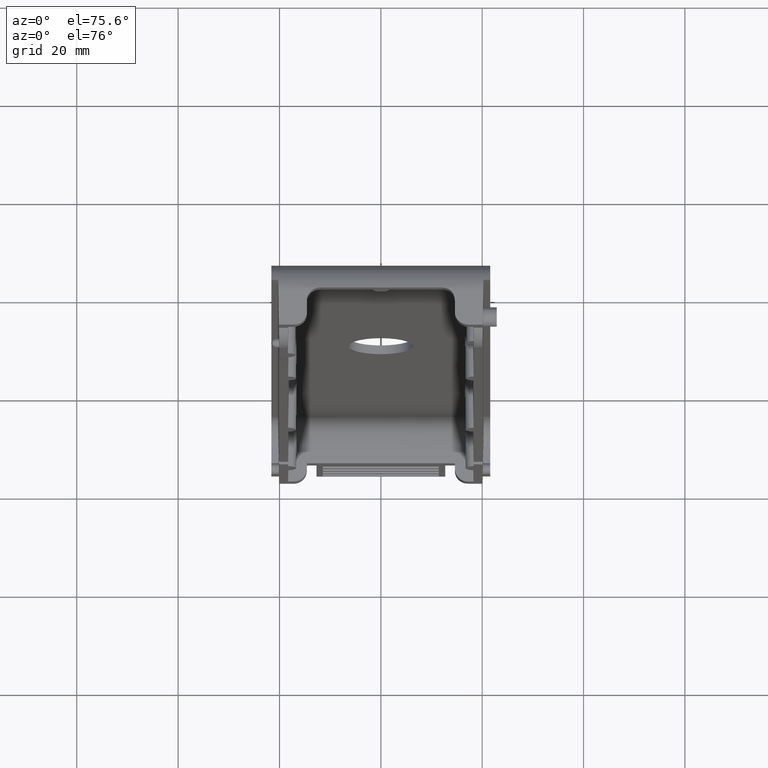
[diagram: clean part render]
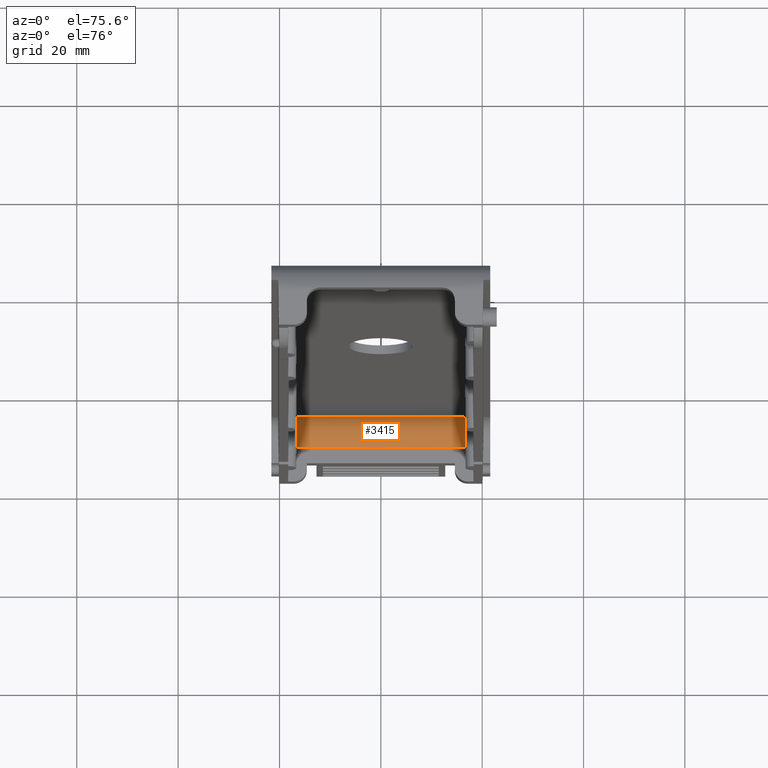
[diagram: same view with one face highlighted and labeled with its STEP entity id]
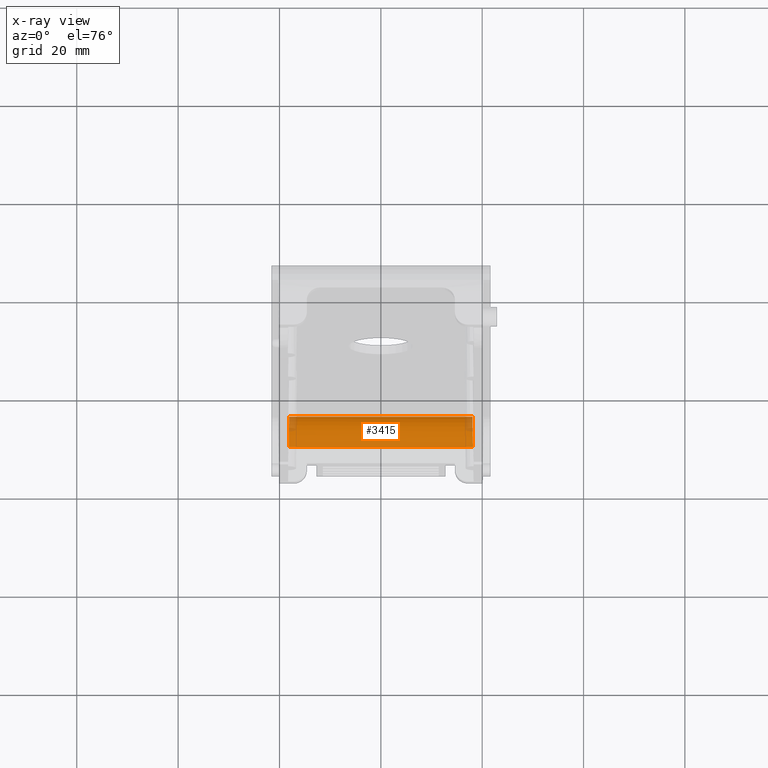
[diagram: x-ray of the same camera — body ghosted, the highlighted face saturated]
A machine part, auxiliary view. The second image highlights one B-rep face of the part: STEP entity #3415.
The next image is the same camera in x-ray: the body ghosted, the highlighted face saturated — about 4% of this face is hidden behind the body in this view.
In plain terms, the highlighted cylindrical surface (edge-blend (fillet) strip) has radius 5.08 mm, axis along (1, 0, 0).
Its self-contained STEP definition (entity closure, byte-faithful):
#162 = CARTESIAN_POINT ( 'NONE',  ( -0.7159034504981712800, 0.2719798993405001500, -2.406642196205909500 ) ) ;
#175 = CARTESIAN_POINT ( 'NONE',  ( -0.7125342721087086800, 0.4650000000000001400, -2.320704110551159000 ) ) ;
#233 = CARTESIAN_POINT ( 'NONE',  ( 0.7139158305506323500, 0.3858505698715437600, -2.402665744768424500 ) ) ;
#380 = DIRECTION ( 'NONE',  ( 1.000000000000000000, 0.0000000000000000000, 0.0000000000000000000 ) ) ;
#399 = ORIENTED_EDGE ( 'NONE', *, *, #963, .T. ) ;
#492 = CARTESIAN_POINT ( 'NONE',  ( -0.7139158305506322400, 0.3858505698715436500, -2.402665744768424500 ) ) ;
#596 = LINE ( 'NONE', #4113, #4008 ) ;
#656 = VERTEX_POINT ( 'NONE', #3569 ) ;
#770 = AXIS2_PLACEMENT_3D ( 'NONE', #3675, #380, #2686 ) ;
#798 = CARTESIAN_POINT ( 'NONE',  ( 0.8000000000000000400, 0.2719798993405001500, -2.406642196205909500 ) ) ;
#844 = VECTOR ( 'NONE', #1127, 39.37007874015748100 ) ;
#963 = EDGE_CURVE ( 'NONE', #2807, #3726, #596, .T. ) ;
#1078 = EDGE_CURVE ( 'NONE', #2807, #656, #1835, .T. ) ;
#1127 = DIRECTION ( 'NONE',  ( 1.000000000000000000, -0.0000000000000000000, 0.0000000000000000000 ) ) ;
#1835 =( BOUNDED_CURVE ( )  B_SPLINE_CURVE ( 3, ( #3515, #1880, #233, #2544 ),
 .UNSPECIFIED., .F., .F. ) 
 B_SPLINE_CURVE_WITH_KNOTS ( ( 4, 4 ),
 ( 3.141592653589793100, 4.677482395344803500 ),
 .UNSPECIFIED. ) 
 CURVE ( )  GEOMETRIC_REPRESENTATION_ITEM ( )  RATIONAL_B_SPLINE_CURVE ( ( 1.000000000000000000, 0.8128932002257673900, 0.8128932002257673900, 1.000000000000000000 ) ) 
 REPRESENTATION_ITEM ( '' )  );
#1880 = CARTESIAN_POINT ( 'NONE',  ( 0.7125342721087087900, 0.4650000000000001400, -2.320704110551159000 ) ) ;
#2490 = CARTESIAN_POINT ( 'NONE',  ( -0.7125342721087089000, 0.4650000000000000800, -2.206764030802090800 ) ) ;
#2507 = CYLINDRICAL_SURFACE ( 'NONE', #770, 0.2000000000000000400 ) ;
#2544 = CARTESIAN_POINT ( 'NONE',  ( 0.7159034504981715000, 0.2719798993405001500, -2.406642196205909500 ) ) ;
#2553 = EDGE_CURVE ( 'NONE', #2582, #656, #3466, .T. ) ;
#2582 = VERTEX_POINT ( 'NONE', #3092 ) ;
#2625 = EDGE_CURVE ( 'NONE', #2582, #3726, #2990, .T. ) ;
#2684 = ORIENTED_EDGE ( 'NONE', *, *, #2553, .T. ) ;
#2686 = DIRECTION ( 'NONE',  ( 0.0000000000000000000, 0.0000000000000000000, -1.000000000000000000 ) ) ;
#2807 = VERTEX_POINT ( 'NONE', #2954 ) ;
#2935 = EDGE_LOOP ( 'NONE', ( #3670, #399, #3657, #2684 ) ) ;
#2954 = CARTESIAN_POINT ( 'NONE',  ( 0.7125342721087087900, 0.4650000000000000800, -2.206764030802090800 ) ) ;
#2990 =( BOUNDED_CURVE ( )  B_SPLINE_CURVE ( 3, ( #162, #492, #175, #2490 ),
 .UNSPECIFIED., .F., .F. ) 
 B_SPLINE_CURVE_WITH_KNOTS ( ( 4, 4 ),
 ( 4.747295565424575900, 6.283185307179586200 ),
 .UNSPECIFIED. ) 
 CURVE ( )  GEOMETRIC_REPRESENTATION_ITEM ( )  RATIONAL_B_SPLINE_CURVE ( ( 1.000000000000000000, 0.8128932002257673900, 0.8128932002257673900, 1.000000000000000000 ) ) 
 REPRESENTATION_ITEM ( '' )  );
#3092 = CARTESIAN_POINT ( 'NONE',  ( -0.7159034504981712800, 0.2719798993405001500, -2.406642196205909500 ) ) ;
#3120 = DIRECTION ( 'NONE',  ( -1.000000000000000000, -0.0000000000000000000, -0.0000000000000000000 ) ) ;
#3415 = ADVANCED_FACE ( 'NONE', ( #4254 ), #2507, .F. ) ;
#3466 = LINE ( 'NONE', #798, #844 ) ;
#3515 = CARTESIAN_POINT ( 'NONE',  ( 0.7125342721087087900, 0.4650000000000000800, -2.206764030802090800 ) ) ;
#3569 = CARTESIAN_POINT ( 'NONE',  ( 0.7159034504981715000, 0.2719798993405001500, -2.406642196205909500 ) ) ;
#3657 = ORIENTED_EDGE ( 'NONE', *, *, #2625, .F. ) ;
#3670 = ORIENTED_EDGE ( 'NONE', *, *, #1078, .F. ) ;
#3675 = CARTESIAN_POINT ( 'NONE',  ( 0.8000000000000000400, 0.2650000000000000100, -2.206764030802090800 ) ) ;
#3726 = VERTEX_POINT ( 'NONE', #3974 ) ;
#3974 = CARTESIAN_POINT ( 'NONE',  ( -0.7125342721087089000, 0.4650000000000000800, -2.206764030802090800 ) ) ;
#4008 = VECTOR ( 'NONE', #3120, 39.37007874015748100 ) ;
#4113 = CARTESIAN_POINT ( 'NONE',  ( 0.8000000000000000400, 0.4650000000000000200, -2.206764030802090800 ) ) ;
#4254 = FACE_OUTER_BOUND ( 'NONE', #2935, .T. ) ;